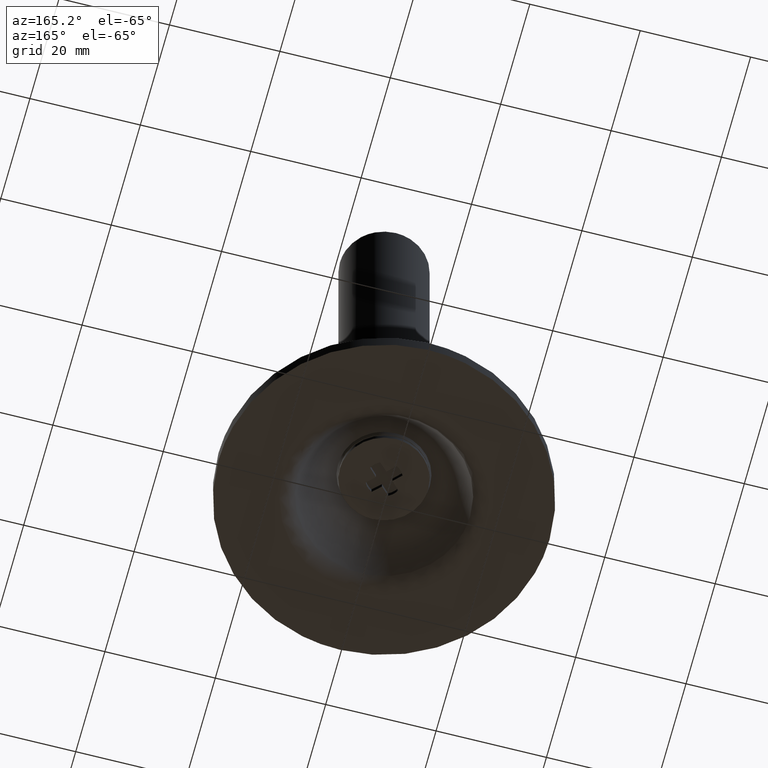
[diagram: clean part render]
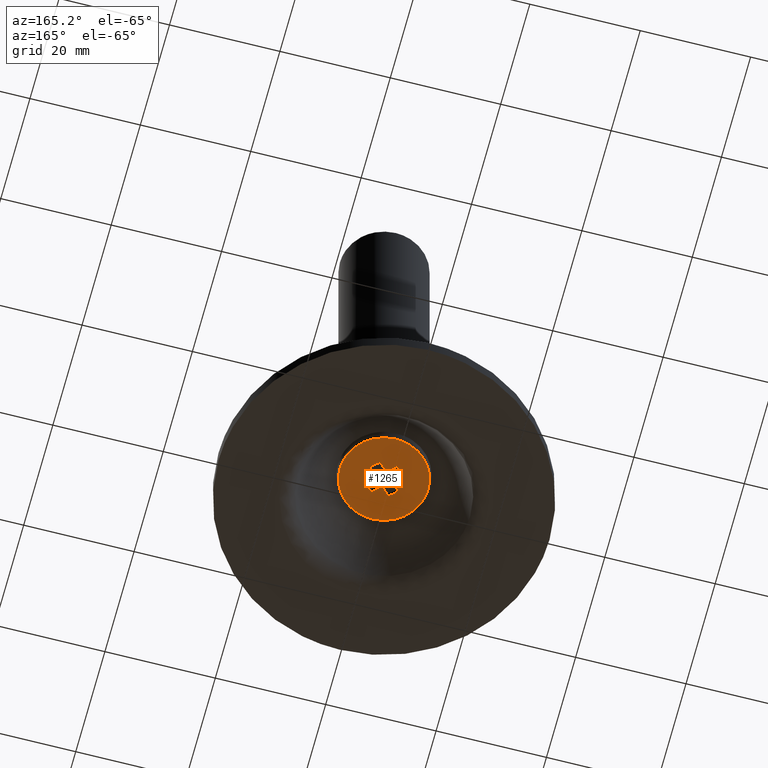
[diagram: same view with one face highlighted and labeled with its STEP entity id]
A machine part, auxiliary view. The second image highlights one B-rep face of the part: STEP entity #1265.
In plain terms, the highlighted face is a freeform B-spline surface patch.
Its self-contained STEP definition (entity closure, byte-faithful):
#673=CARTESIAN_POINT('',(1.481984000000000,-1.084202E-016,8.600000000000000));
#674=VERTEX_POINT('',#673);
#675=CARTESIAN_POINT('',(1.491467999999926,-0.031021999999993,8.600000000000000));
#676=VERTEX_POINT('',#675);
#677=CARTESIAN_POINT('',(1.481984000000000,-1.084202E-016,8.600000000000000));
#678=CARTESIAN_POINT('',(1.491467999999926,-0.031021999999993,8.600000000000000));
#679=QUASI_UNIFORM_CURVE('',1,(#677,#678),.UNSPECIFIED.,.F.,.U.);
#680=EDGE_CURVE('',#674,#676,#679,.T.);
#701=CARTESIAN_POINT('',(1.491467999999926,0.031022999999976,8.600000000000000));
#702=VERTEX_POINT('',#701);
#703=CARTESIAN_POINT('',(1.491467999999926,0.031022999999976,8.600000000000000));
#704=CARTESIAN_POINT('',(1.481984000000000,-1.084202E-016,8.600000000000000));
#705=QUASI_UNIFORM_CURVE('',1,(#703,#704),.UNSPECIFIED.,.F.,.U.);
#706=EDGE_CURVE('',#702,#674,#705,.T.);
#723=CARTESIAN_POINT('',(2.912574381164845,1.502621612361000,8.600000000000000));
#724=VERTEX_POINT('',#723);
#725=CARTESIAN_POINT('',(2.912574381164845,1.502621612361000,8.600000000000000));
#726=CARTESIAN_POINT('',(1.491467999999926,0.031022999999976,8.600000000000000));
#727=QUASI_UNIFORM_CURVE('',1,(#725,#726),.UNSPECIFIED.,.F.,.U.);
#728=EDGE_CURVE('',#724,#702,#727,.T.);
#754=CARTESIAN_POINT('',(1.477147999999930,2.938049000000000,8.600000000000000));
#755=VERTEX_POINT('',#754);
#756=CARTESIAN_POINT('',(1.477147999999930,2.938049000000000,8.600000000000000));
#757=CARTESIAN_POINT('',(1.802599848346528,2.771856099287198,8.599999999999991));
#758=CARTESIAN_POINT('',(2.362118702609886,2.355706876510845,8.600000000000023));
#759=CARTESIAN_POINT('',(2.765882706517457,1.789750543599004,8.599999999999978));
#760=CARTESIAN_POINT('',(2.912574381164845,1.502621612361000,8.600000000000000));
#761=B_SPLINE_CURVE_WITH_KNOTS('',3,(#756,#757,#758,#759,#760),.UNSPECIFIED.,.F.,.U.,(4,1,4),(0.000000018624742,1.096220068213980,2.063484842676528),.UNSPECIFIED.);
#762=EDGE_CURVE('',#755,#724,#761,.T.);
#779=CARTESIAN_POINT('',(0.005548999999959,1.516942000000000,8.600000000000000));
#780=VERTEX_POINT('',#779);
#781=CARTESIAN_POINT('',(0.005548999999959,1.516942000000000,8.600000000000000));
#782=CARTESIAN_POINT('',(1.477147999999930,2.938049000000000,8.600000000000000));
#783=QUASI_UNIFORM_CURVE('',1,(#781,#782),.UNSPECIFIED.,.F.,.U.);
#784=EDGE_CURVE('',#780,#755,#783,.T.);
#801=CARTESIAN_POINT('',(-0.025474000000045,1.507458000000000,8.600000000000000));
#802=VERTEX_POINT('',#801);
#803=CARTESIAN_POINT('',(-0.025474000000045,1.507458000000000,8.600000000000000));
#804=CARTESIAN_POINT('',(0.005548999999959,1.516942000000000,8.600000000000000));
#805=QUASI_UNIFORM_CURVE('',1,(#803,#804),.UNSPECIFIED.,.F.,.U.);
#806=EDGE_CURVE('',#802,#780,#805,.T.);
#823=CARTESIAN_POINT('',(-0.056497000000050,1.516942000000000,8.600000000000000));
#824=VERTEX_POINT('',#823);
#825=CARTESIAN_POINT('',(-0.056497000000050,1.516942000000000,8.600000000000000));
#826=CARTESIAN_POINT('',(-0.025474000000045,1.507458000000000,8.600000000000000));
#827=QUASI_UNIFORM_CURVE('',1,(#825,#826),.UNSPECIFIED.,.F.,.U.);
#828=EDGE_CURVE('',#824,#802,#827,.T.);
#845=CARTESIAN_POINT('',(-1.528095612361015,2.938048381164905,8.600000000000000));
#846=VERTEX_POINT('',#845);
#847=CARTESIAN_POINT('',(-1.528095612361015,2.938048381164905,8.600000000000000));
#848=CARTESIAN_POINT('',(-0.056497000000050,1.516942000000000,8.600000000000000));
#849=QUASI_UNIFORM_CURVE('',1,(#847,#848),.UNSPECIFIED.,.F.,.U.);
#850=EDGE_CURVE('',#846,#824,#849,.T.);
#876=CARTESIAN_POINT('',(-2.963522000000000,1.502622000000000,8.600000000000000));
#877=VERTEX_POINT('',#876);
#878=CARTESIAN_POINT('',(-2.963522000000000,1.502622000000000,8.600000000000000));
#879=CARTESIAN_POINT('',(-2.777897209652758,1.866468958639605,8.600000000000005));
#880=CARTESIAN_POINT('',(-2.349234302179023,2.419401991958402,8.600000000000014));
#881=CARTESIAN_POINT('',(-1.776905395992054,2.810871222815599,8.599999999999991));
#882=CARTESIAN_POINT('',(-1.528095612361015,2.938048381164905,8.600000000000000));
#883=B_SPLINE_CURVE_WITH_KNOTS('',3,(#878,#879,#880,#881,#882),.UNSPECIFIED.,.F.,.U.,(4,1,4),(0.000000018624701,1.225184185459103,2.063484203984761),.UNSPECIFIED.);
#884=EDGE_CURVE('',#877,#846,#883,.T.);
#901=CARTESIAN_POINT('',(-1.542416000000000,0.031022999999976,8.600000000000000));
#902=VERTEX_POINT('',#901);
#903=CARTESIAN_POINT('',(-1.542416000000000,0.031022999999976,8.600000000000000));
#904=CARTESIAN_POINT('',(-2.963522000000000,1.502622000000000,8.600000000000000));
#905=QUASI_UNIFORM_CURVE('',1,(#903,#904),.UNSPECIFIED.,.F.,.U.);
#906=EDGE_CURVE('',#902,#877,#905,.T.);
#923=CARTESIAN_POINT('',(-1.532931000000090,0.0,8.600000000000000));
#924=VERTEX_POINT('',#923);
#925=CARTESIAN_POINT('',(-1.532931000000090,0.0,8.600000000000000));
#926=CARTESIAN_POINT('',(-1.542416000000000,0.031022999999976,8.600000000000000));
#927=QUASI_UNIFORM_CURVE('',1,(#925,#926),.UNSPECIFIED.,.F.,.U.);
#928=EDGE_CURVE('',#924,#902,#927,.T.);
#945=CARTESIAN_POINT('',(-1.542416000000000,-0.031021999999993,8.600000000000000));
#946=VERTEX_POINT('',#945);
#947=CARTESIAN_POINT('',(-1.542416000000000,-0.031021999999993,8.600000000000000));
#948=CARTESIAN_POINT('',(-1.532931000000090,0.0,8.600000000000000));
#949=QUASI_UNIFORM_CURVE('',1,(#947,#948),.UNSPECIFIED.,.F.,.U.);
#950=EDGE_CURVE('',#946,#924,#949,.T.);
#967=CARTESIAN_POINT('',(-2.963522381164935,-1.502621612360995,8.600000000000000));
#968=VERTEX_POINT('',#967);
#969=CARTESIAN_POINT('',(-2.963522381164935,-1.502621612360995,8.600000000000000));
#970=CARTESIAN_POINT('',(-1.542416000000000,-0.031021999999993,8.600000000000000));
#971=QUASI_UNIFORM_CURVE('',1,(#969,#970),.UNSPECIFIED.,.F.,.U.);
#972=EDGE_CURVE('',#968,#946,#971,.T.);
#998=CARTESIAN_POINT('',(-1.528095000000000,-2.938048000000000,8.600000000000000));
#999=VERTEX_POINT('',#998);
#1000=CARTESIAN_POINT('',(-1.528095000000000,-2.938048000000000,8.600000000000000));
#1001=CARTESIAN_POINT('',(-1.891931597802925,-2.752417132706144,8.600000000000003));
#1002=CARTESIAN_POINT('',(-2.444896918285791,-2.323774377338669,8.600000000000003));
#1003=CARTESIAN_POINT('',(-2.836334038380715,-1.751424814666756,8.600000000000003));
#1004=CARTESIAN_POINT('',(-2.963522381164935,-1.502621612360995,8.600000000000000));
#1005=B_SPLINE_CURVE_WITH_KNOTS('',3,(#1000,#1001,#1002,#1003,#1004),.UNSPECIFIED.,.F.,.U.,(4,1,4),(0.000000018624890,1.225184658414204,2.063485000583726),.UNSPECIFIED.);
#1006=EDGE_CURVE('',#999,#968,#1005,.T.);
#1023=CARTESIAN_POINT('',(-0.056497000000050,-1.516941000000000,8.600000000000000));
#1024=VERTEX_POINT('',#1023);
#1025=CARTESIAN_POINT('',(-0.056497000000050,-1.516941000000000,8.600000000000000));
#1026=CARTESIAN_POINT('',(-1.528095000000000,-2.938048000000000,8.600000000000000));
#1027=QUASI_UNIFORM_CURVE('',1,(#1025,#1026),.UNSPECIFIED.,.F.,.U.);
#1028=EDGE_CURVE('',#1024,#999,#1027,.T.);
#1045=CARTESIAN_POINT('',(-0.025474000000045,-1.507457000000000,8.600000000000000));
#1046=VERTEX_POINT('',#1045);
#1047=CARTESIAN_POINT('',(-0.025474000000045,-1.507457000000000,8.600000000000000));
#1048=CARTESIAN_POINT('',(-0.056497000000050,-1.516941000000000,8.600000000000000));
#1049=QUASI_UNIFORM_CURVE('',1,(#1047,#1048),.UNSPECIFIED.,.F.,.U.);
#1050=EDGE_CURVE('',#1046,#1024,#1049,.T.);
#1067=CARTESIAN_POINT('',(0.005548999999959,-1.516941000000000,8.600000000000000));
#1068=VERTEX_POINT('',#1067);
#1069=CARTESIAN_POINT('',(0.005548999999959,-1.516941000000000,8.600000000000000));
#1070=CARTESIAN_POINT('',(-0.025474000000045,-1.507457000000000,8.600000000000000));
#1071=QUASI_UNIFORM_CURVE('',1,(#1069,#1070),.UNSPECIFIED.,.F.,.U.);
#1072=EDGE_CURVE('',#1068,#1046,#1071,.T.);
#1089=CARTESIAN_POINT('',(1.477147612360922,-2.938048381164905,8.600000000000000));
#1090=VERTEX_POINT('',#1089);
#1091=CARTESIAN_POINT('',(1.477147612360922,-2.938048381164905,8.600000000000000));
#1092=CARTESIAN_POINT('',(0.005548999999959,-1.516941000000000,8.600000000000000));
#1093=QUASI_UNIFORM_CURVE('',1,(#1091,#1092),.UNSPECIFIED.,.F.,.U.);
#1094=EDGE_CURVE('',#1090,#1068,#1093,.T.);
#1120=CARTESIAN_POINT('',(2.912574381164845,-1.502621612360995,8.600000000000000));
#1121=VERTEX_POINT('',#1120);
#1122=CARTESIAN_POINT('',(2.912574381164845,-1.502621612360995,8.600000000000000));
#1123=CARTESIAN_POINT('',(2.785392071561694,-1.751427106379718,8.600000000000012));
#1124=CARTESIAN_POINT('',(2.393949570989622,-2.323782391758369,8.599999999999975));
#1125=CARTESIAN_POINT('',(1.840973803601117,-2.752399651544033,8.600000000000019));
#1126=CARTESIAN_POINT('',(1.477147612360922,-2.938048381164905,8.600000000000000));
#1127=B_SPLINE_CURVE_WITH_KNOTS('',3,(#1122,#1123,#1124,#1125,#1126),.UNSPECIFIED.,.F.,.U.,(4,1,4),(0.000000018624750,0.838300261500193,2.063484756224348),.UNSPECIFIED.);
#1128=EDGE_CURVE('',#1121,#1090,#1127,.T.);
#1145=CARTESIAN_POINT('',(1.491467999999926,-0.031021999999993,8.600000000000000));
#1146=CARTESIAN_POINT('',(2.912574381164845,-1.502621612360995,8.600000000000000));
#1147=QUASI_UNIFORM_CURVE('',1,(#1145,#1146),.UNSPECIFIED.,.F.,.U.);
#1148=EDGE_CURVE('',#676,#1121,#1147,.T.);
#1156=CARTESIAN_POINT('',(8.799199968988896,-8.799199968988692,8.600000000000000));
#1157=CARTESIAN_POINT('',(-8.799200398142338,-8.799199968988692,8.600000000000000));
#1158=CARTESIAN_POINT('',(8.799199968988896,8.799200398142135,8.600000000000000));
#1159=CARTESIAN_POINT('',(-8.799200398142338,8.799200398142135,8.600000000000000));
#1160=B_SPLINE_SURFACE_WITH_KNOTS('',1,1,((#1156,#1158),(#1157,#1159)),.UNSPECIFIED.,.F.,.F.,.U.,(2,2),(2,2),(0.0,17.598400367131230),(0.0,17.598400367130829),.UNSPECIFIED.);
#1161=CARTESIAN_POINT('',(0.000001714694257,7.999999999999815,8.599999999999998));
#1162=VERTEX_POINT('',#1161);
#1163=CARTESIAN_POINT('',(8.0,0.0,8.600000000000000));
#1164=VERTEX_POINT('',#1163);
#1165=CARTESIAN_POINT('',(0.000001714694257,7.999999999999815,8.599999999999998));
#1166=CARTESIAN_POINT('',(0.589054115201106,8.000111131122392,8.599999999999991));
#1167=CARTESIAN_POINT('',(1.603476427921513,7.887424083266345,8.600000000000041));
#1168=CARTESIAN_POINT('',(3.045885956028191,7.440198864086969,8.599999999999930));
#1169=CARTESIAN_POINT('',(4.304240687023803,6.797106418106367,8.600000000000124));
#1170=CARTESIAN_POINT('',(5.527745000650470,5.854329307020506,8.599999999999875));
#1171=CARTESIAN_POINT('',(6.588313384862968,4.640009882748179,8.600000000000023));
#1172=CARTESIAN_POINT('',(7.390418696062334,3.203615451599585,8.600000000000135));
#1173=CARTESIAN_POINT('',(7.886905682987027,1.636213781275919,8.599999999999842));
#1174=CARTESIAN_POINT('',(8.000075309713022,0.556324028731474,8.600000000000092));
#1175=CARTESIAN_POINT('',(8.0,0.0,8.600000000000000));
#1176=B_SPLINE_CURVE_WITH_KNOTS('',3,(#1165,#1166,#1167,#1168,#1169,#1170,#1171,#1172,#1173,#1174,#1175),.UNSPECIFIED.,.F.,.U.,(4,1,1,1,1,1,1,1,4),(0.000000057273459,1.767140024488890,3.043435728352424,4.516083617003792,5.988730295847934,7.657666817676113,9.326659680611890,10.897482132453510,12.566448496565981),.UNSPECIFIED.);
#1177=EDGE_CURVE('',#1162,#1164,#1176,.T.);
#1178=ORIENTED_EDGE('',*,*,#1177,.T.);
#1179=CARTESIAN_POINT('',(5.802994630800837,-5.506836339089709,8.600000000000000));
#1180=VERTEX_POINT('',#1179);
#1181=CARTESIAN_POINT('',(8.0,0.0,8.600000000000000));
#1182=CARTESIAN_POINT('',(8.000061547524666,-0.506150157692180,8.600000000000003));
#1183=CARTESIAN_POINT('',(7.918649672259752,-1.360246896773552,8.599999999999998));
#1184=CARTESIAN_POINT('',(7.574766077235956,-2.679329628141721,8.599999999999998));
#1185=CARTESIAN_POINT('',(6.959541587568783,-4.075031623985147,8.600000000000026));
#1186=CARTESIAN_POINT('',(6.260418243041261,-5.025068424310897,8.599999999999994));
#1187=CARTESIAN_POINT('',(5.802994630800837,-5.506836339089709,8.600000000000000));
#1188=B_SPLINE_CURVE_WITH_KNOTS('',3,(#1181,#1182,#1183,#1184,#1185,#1186,#1187),.UNSPECIFIED.,.F.,.U.,(4,1,1,1,4),(0.000000016165732,1.518445520676842,2.562386059106263,4.080817072248498,6.073781285265685),.UNSPECIFIED.);
#1189=EDGE_CURVE('',#1164,#1180,#1188,.T.);
#1190=ORIENTED_EDGE('',*,*,#1189,.T.);
#1191=CARTESIAN_POINT('',(-0.000001714694323,-7.999999999999816,8.600000000000000));
#1192=VERTEX_POINT('',#1191);
#1193=CARTESIAN_POINT('',(5.802994630800837,-5.506836339089709,8.600000000000000));
#1194=CARTESIAN_POINT('',(5.500409289580626,-5.825730270952016,8.600000000000007));
#1195=CARTESIAN_POINT('',(4.817188067312082,-6.436066190346963,8.599999999999980));
#1196=CARTESIAN_POINT('',(3.521228131812114,-7.245049305781031,8.600000000000010));
#1197=CARTESIAN_POINT('',(1.893622782550828,-7.848449619967923,8.600000000000005));
#1198=CARTESIAN_POINT('',(0.642511803455758,-8.000157799702622,8.599999999999998));
#1199=CARTESIAN_POINT('',(-0.000001714694323,-7.999999999999816,8.600000000000000));
#1200=B_SPLINE_CURVE_WITH_KNOTS('',3,(#1193,#1194,#1195,#1196,#1197,#1198,#1199),.UNSPECIFIED.,.F.,.U.,(4,1,1,1,4),(0.000000017989600,1.318819863705969,2.739108975224233,4.565154764183339,6.492669818944954),.UNSPECIFIED.);
#1201=EDGE_CURVE('',#1180,#1192,#1200,.T.);
#1202=ORIENTED_EDGE('',*,*,#1201,.T.);
#1203=CARTESIAN_POINT('',(-8.0,0.0,8.600000000000000));
#1204=VERTEX_POINT('',#1203);
#1205=CARTESIAN_POINT('',(-0.000001714694323,-7.999999999999816,8.600000000000000));
#1206=CARTESIAN_POINT('',(-0.654512526867120,-8.000171284413712,8.600000000000000));
#1207=CARTESIAN_POINT('',(-1.799803378141223,-7.858621465396554,8.599999999999991));
#1208=CARTESIAN_POINT('',(-3.412352988296187,-7.292806513581523,8.599999999999994));
#1209=CARTESIAN_POINT('',(-4.686974295402877,-6.539394551534042,8.600000000000012));
#1210=CARTESIAN_POINT('',(-5.824386883106394,-5.545992469508196,8.599999999999985));
#1211=CARTESIAN_POINT('',(-6.707924749444604,-4.442079985895841,8.599999999999973));
#1212=CARTESIAN_POINT('',(-7.420172096335428,-3.109555808789395,8.600000000000101));
#1213=CARTESIAN_POINT('',(-7.886903191942863,-1.636216224409557,8.599999999999852));
#1214=CARTESIAN_POINT('',(-8.000086130062478,-0.556325318985882,8.600000000000204));
#1215=CARTESIAN_POINT('',(-8.0,0.0,8.600000000000000));
#1216=B_SPLINE_CURVE_WITH_KNOTS('',3,(#1205,#1206,#1207,#1208,#1209,#1210,#1211,#1212,#1213,#1214,#1215),.UNSPECIFIED.,.F.,.U.,(4,1,1,1,1,1,1,1,4),(0.000000057272912,1.963501211818324,3.436139478415349,5.105144891994200,6.381383735585962,7.952190638943327,9.326659680611842,10.897482132453501,12.566448496565940),.UNSPECIFIED.);
#1217=EDGE_CURVE('',#1192,#1204,#1216,.T.);
#1218=ORIENTED_EDGE('',*,*,#1217,.T.);
#1219=CARTESIAN_POINT('',(-5.802994630800849,5.506836339089720,8.599999999999998));
#1220=VERTEX_POINT('',#1219);
#1221=CARTESIAN_POINT('',(-8.0,0.0,8.600000000000000));
#1222=CARTESIAN_POINT('',(-8.000055250529167,0.506149587983944,8.600000000000005));
#1223=CARTESIAN_POINT('',(-7.924686586812951,1.296979229424424,8.599999999999977));
#1224=CARTESIAN_POINT('',(-7.627159534529369,2.496104721180654,8.600000000000037));
#1225=CARTESIAN_POINT('',(-7.062698322790974,3.911400091047087,8.599999999999950));
#1226=CARTESIAN_POINT('',(-6.347661804674223,4.933375536963694,8.600000000000062));
#1227=CARTESIAN_POINT('',(-5.802994630800849,5.506836339089720,8.599999999999998));
#1228=B_SPLINE_CURVE_WITH_KNOTS('',3,(#1221,#1222,#1223,#1224,#1225,#1226,#1227),.UNSPECIFIED.,.F.,.U.,(4,1,1,1,4),(0.000000016165459,1.518445520676636,2.372572960107014,3.701207295569647,6.073781285265687),.UNSPECIFIED.);
#1229=EDGE_CURVE('',#1204,#1220,#1228,.T.);
#1230=ORIENTED_EDGE('',*,*,#1229,.T.);
#1231=CARTESIAN_POINT('',(-5.802994630800849,5.506836339089720,8.599999999999998));
#1232=CARTESIAN_POINT('',(-5.500410102551663,5.825733028756985,8.600000000000005));
#1233=CARTESIAN_POINT('',(-4.817189596229154,6.436072913951969,8.599999999999991));
#1234=CARTESIAN_POINT('',(-3.607601859070373,7.191041151844187,8.599999999999968));
#1235=CARTESIAN_POINT('',(-1.994988401007752,7.824155569925389,8.600000000000030));
#1236=CARTESIAN_POINT('',(-0.743979715123094,8.000275151372774,8.599999999999985));
#1237=CARTESIAN_POINT('',(0.000001714694257,7.999999999999815,8.599999999999998));
#1238=B_SPLINE_CURVE_WITH_KNOTS('',3,(#1231,#1232,#1233,#1234,#1235,#1236,#1237),.UNSPECIFIED.,.F.,.U.,(4,1,1,1,4),(0.000000017989759,1.318819863706006,2.739108975224237,4.260808586061344,6.492669818944893),.UNSPECIFIED.);
#1239=EDGE_CURVE('',#1220,#1162,#1238,.T.);
#1240=ORIENTED_EDGE('',*,*,#1239,.T.);
#1241=EDGE_LOOP('',(#1178,#1190,#1202,#1218,#1230,#1240));
#1242=FACE_OUTER_BOUND('',#1241,.T.);
#1243=ORIENTED_EDGE('',*,*,#1148,.F.);
#1244=ORIENTED_EDGE('',*,*,#680,.F.);
#1245=ORIENTED_EDGE('',*,*,#706,.F.);
#1246=ORIENTED_EDGE('',*,*,#728,.F.);
#1247=ORIENTED_EDGE('',*,*,#762,.F.);
#1248=ORIENTED_EDGE('',*,*,#784,.F.);
#1249=ORIENTED_EDGE('',*,*,#806,.F.);
#1250=ORIENTED_EDGE('',*,*,#828,.F.);
#1251=ORIENTED_EDGE('',*,*,#850,.F.);
#1252=ORIENTED_EDGE('',*,*,#884,.F.);
#1253=ORIENTED_EDGE('',*,*,#906,.F.);
#1254=ORIENTED_EDGE('',*,*,#928,.F.);
#1255=ORIENTED_EDGE('',*,*,#950,.F.);
#1256=ORIENTED_EDGE('',*,*,#972,.F.);
#1257=ORIENTED_EDGE('',*,*,#1006,.F.);
#1258=ORIENTED_EDGE('',*,*,#1028,.F.);
#1259=ORIENTED_EDGE('',*,*,#1050,.F.);
#1260=ORIENTED_EDGE('',*,*,#1072,.F.);
#1261=ORIENTED_EDGE('',*,*,#1094,.F.);
#1262=ORIENTED_EDGE('',*,*,#1128,.F.);
#1263=EDGE_LOOP('',(#1243,#1244,#1245,#1246,#1247,#1248,#1249,#1250,#1251,#1252,#1253,#1254,#1255,#1256,#1257,#1258,#1259,#1260,#1261,#1262));
#1264=FACE_BOUND('',#1263,.T.);
#1265=ADVANCED_FACE('',(#1242,#1264),#1160,.T.);